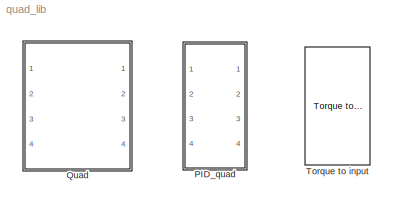
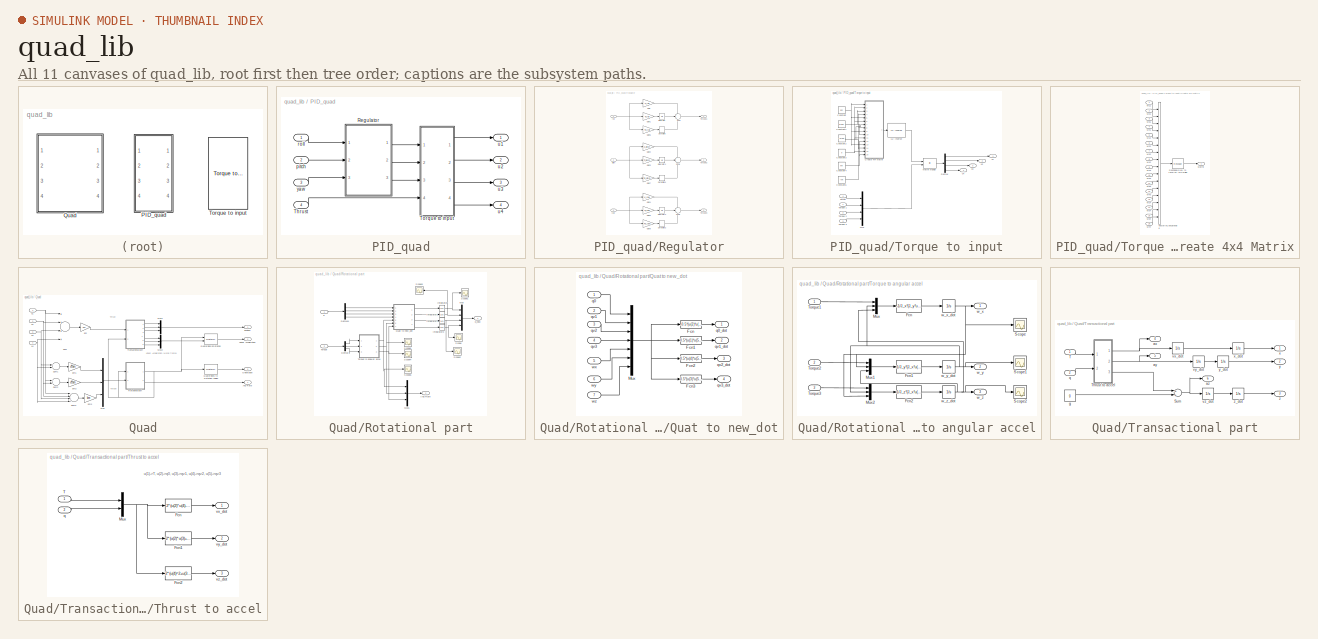
[diagram: thumbnail index - all 11 canvases of the model, root first then tree order]
MODEL quad_lib
KIND library
BLOCK [SubSystem] PID_quad
  FunctionWithSeparateData = off
  MaskHideContents = off
  MinAlgLoopOccurrences = off
  Opaque = off
  Ports = [4, 4]
  PropExecContextOutsideSubsystem = off
  RTWSystemCode = Auto
  RequestExecContextInheritance = off
  SID = 149
BLOCK [Outport] PID_quad/ u1
  IconDisplay = Port number
  SID = 199
BLOCK [Outport] PID_quad/ u2
  IconDisplay = Port number
  Port = 2
  SID = 200
BLOCK [Outport] PID_quad/ u3
  IconDisplay = Port number
  Port = 3
  SID = 201
BLOCK [Outport] PID_quad/ u4
  IconDisplay = Port number
  Port = 4
  SID = 202
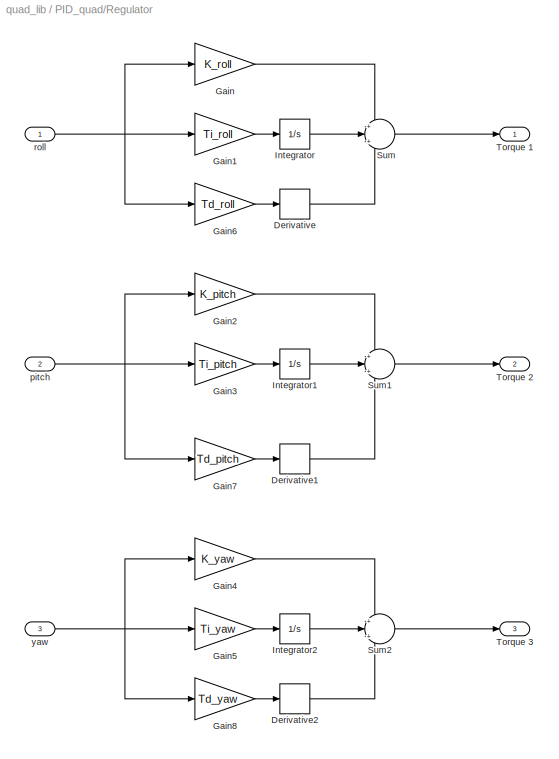
BLOCK [SubSystem] PID_quad/Regulator
  FunctionWithSeparateData = off
  MaskHideContents = off
  MinAlgLoopOccurrences = off
  Opaque = off
  Ports = [3, 3]
  PropExecContextOutsideSubsystem = off
  RTWSystemCode = Auto
  RequestExecContextInheritance = off
  SID = 154
BLOCK [Outport] PID_quad/Regulator/ Torque 1
  IconDisplay = Port number
  SID = 176
BLOCK [Outport] PID_quad/Regulator/ Torque 2
  IconDisplay = Port number
  Port = 2
  SID = 177
BLOCK [Outport] PID_quad/Regulator/ Torque 3
  IconDisplay = Port number
  Port = 3
  SID = 178
BLOCK [Derivative] PID_quad/Regulator/Derivative
  SID = 158
BLOCK [Derivative] PID_quad/Regulator/Derivative1
  SID = 159
BLOCK [Derivative] PID_quad/Regulator/Derivative2
  SID = 160
BLOCK [Gain] PID_quad/Regulator/Gain
  Gain = K_roll
  OutDataTypeStr = Inherit: Inherit via internal rule
  ParamDataTypeStr = Inherit: Inherit via internal rule
  SID = 161
  SaturateOnIntegerOverflow = off
BLOCK [Gain] PID_quad/Regulator/Gain1
  Gain = Ti_roll
  OutDataTypeStr = Inherit: Inherit via internal rule
  ParamDataTypeStr = Inherit: Inherit via internal rule
  SID = 162
  SaturateOnIntegerOverflow = off
BLOCK [Gain] PID_quad/Regulator/Gain2
  Gain = K_pitch
  OutDataTypeStr = Inherit: Inherit via internal rule
  ParamDataTypeStr = Inherit: Inherit via internal rule
  SID = 163
  SaturateOnIntegerOverflow = off
BLOCK [Gain] PID_quad/Regulator/Gain3
  Gain = Ti_pitch
  OutDataTypeStr = Inherit: Inherit via internal rule
  ParamDataTypeStr = Inherit: Inherit via internal rule
  SID = 164
  SaturateOnIntegerOverflow = off
BLOCK [Gain] PID_quad/Regulator/Gain4
  Gain = K_yaw
  OutDataTypeStr = Inherit: Inherit via internal rule
  ParamDataTypeStr = Inherit: Inherit via internal rule
  SID = 165
  SaturateOnIntegerOverflow = off
BLOCK [Gain] PID_quad/Regulator/Gain5
  Gain = Ti_yaw
  OutDataTypeStr = Inherit: Inherit via internal rule
  ParamDataTypeStr = Inherit: Inherit via internal rule
  SID = 166
  SaturateOnIntegerOverflow = off
BLOCK [Gain] PID_quad/Regulator/Gain6
  Gain = Td_roll
  OutDataTypeStr = Inherit: Inherit via internal rule
  ParamDataTypeStr = Inherit: Inherit via internal rule
  SID = 167
  SaturateOnIntegerOverflow = off
BLOCK [Gain] PID_quad/Regulator/Gain7
  Gain = Td_pitch
  OutDataTypeStr = Inherit: Inherit via internal rule
  ParamDataTypeStr = Inherit: Inherit via internal rule
  SID = 168
  SaturateOnIntegerOverflow = off
BLOCK [Gain] PID_quad/Regulator/Gain8
  Gain = Td_yaw
  OutDataTypeStr = Inherit: Inherit via internal rule
  ParamDataTypeStr = Inherit: Inherit via internal rule
  SID = 169
  SaturateOnIntegerOverflow = off
BLOCK [Integrator] PID_quad/Regulator/Integrator
  Ports = [1, 1]
  SID = 170
BLOCK [Integrator] PID_quad/Regulator/Integrator1
  Ports = [1, 1]
  SID = 171
BLOCK [Integrator] PID_quad/Regulator/Integrator2
  Ports = [1, 1]
  SID = 172
BLOCK [Sum] PID_quad/Regulator/Sum
  IconShape = round
  InputSameDT = off
  Inputs = +|+|+
  OutDataTypeStr = Inherit: Inherit via internal rule
  Ports = [3, 1]
  SID = 173
  SaturateOnIntegerOverflow = off
BLOCK [Sum] PID_quad/Regulator/Sum1
  IconShape = round
  InputSameDT = off
  Inputs = +|+|+
  OutDataTypeStr = Inherit: Inherit via internal rule
  Ports = [3, 1]
  SID = 174
  SaturateOnIntegerOverflow = off
BLOCK [Sum] PID_quad/Regulator/Sum2
  IconShape = round
  InputSameDT = off
  Inputs = +|+|+
  OutDataTypeStr = Inherit: Inherit via internal rule
  Ports = [3, 1]
  SID = 175
  SaturateOnIntegerOverflow = off
BLOCK [Inport] PID_quad/Regulator/pitch
  IconDisplay = Port number
  Port = 2
  SID = 156
BLOCK [Inport] PID_quad/Regulator/roll
  IconDisplay = Port number
  SID = 155
BLOCK [Inport] PID_quad/Regulator/yaw
  IconDisplay = Port number
  Port = 3
  SID = 157
BLOCK [Inport] PID_quad/Thrust
  IconDisplay = Port number
  Port = 4
  SID = 153
BLOCK [SubSystem] PID_quad/Torque to input
  FunctionWithSeparateData = off
  MaskHideContents = off
  MinAlgLoopOccurrences = off
  Opaque = off
  Ports = [4, 4]
  PropExecContextOutsideSubsystem = off
  RTWSystemCode = Auto
  RequestExecContextInheritance = off
  SID = 179
BLOCK [Reference] PID_quad/Torque to input/ LU Inverse  REF=dspinverses/ LU Inverse
  FunctionWithSeparateData = off
  Ports = [1, 1]
  RTWMemSecDataConstants = Inherit from model
  RTWMemSecDataInternal = Inherit from model
  RTWMemSecDataParameters = Inherit from model
  RTWMemSecFuncExecute = Inherit from model
  RTWMemSecFuncInitTerm = Inherit from model
  SID = 184
  ShowPortLabels = FromPortIcon
  SourceBlock = dspinverses/ LU Inverse
  SourceType = LU Inverse
  SystemSampleTime = -1
BLOCK [Outport] PID_quad/Torque to input/ u1
  IconDisplay = Port number
  SID = 195
BLOCK [Outport] PID_quad/Torque to input/ u2
  IconDisplay = Port number
  Port = 2
  SID = 196
BLOCK [Outport] PID_quad/Torque to input/ u3
  IconDisplay = Port number
  Port = 3
  SID = 197
BLOCK [Outport] PID_quad/Torque to input/ u4
  IconDisplay = Port number
  Port = 4
  SID = 198
BLOCK [Constant] PID_quad/Torque to input/Constant
  SID = 185
  Value = bm
BLOCK [Constant] PID_quad/Torque to input/Constant1
  SID = 186
  Value = d*bm
BLOCK [Constant] PID_quad/Torque to input/Constant2
  SID = 187
  Value = -d*bm
BLOCK [Constant] PID_quad/Torque to input/Constant3
  SID = 188
  Value = 0
BLOCK [Constant] PID_quad/Torque to input/Constant4
  SID = 189
  Value = km
BLOCK [Constant] PID_quad/Torque to input/Constant5
  SID = 190
  Value = -km
BLOCK [SubSystem] PID_quad/Torque to input/Create 4x4 Matrix
  AncestorBlock = aerolibutil/Create 3x3 Matrix
  FunctionWithSeparateData = off
  MaskHideContents = off
  MinAlgLoopOccurrences = off
  Opaque = off
  Ports = [16, 1]
  PropExecContextOutsideSubsystem = off
  RTWSystemCode = Auto
  RequestExecContextInheritance = off
  SID = 191
BLOCK [Inport] PID_quad/Torque to input/Create 4x4 Matrix/M11
  IconDisplay = Port number
  PortDimensions = 1
  SID = 191:138
BLOCK [Inport] PID_quad/Torque to input/Create 4x4 Matrix/M12
  IconDisplay = Port number
  Port = 5
  PortDimensions = 1
  SID = 191:153
BLOCK [Inport] PID_quad/Torque to input/Create 4x4 Matrix/M13
  IconDisplay = Port number
  Port = 9
  PortDimensions = 1
  SID = 191:152
BLOCK [Inport] PID_quad/Torque to input/Create 4x4 Matrix/M14
  IconDisplay = Port number
  Port = 13
  PortDimensions = 1
  SID = 191:159
BLOCK [Inport] PID_quad/Torque to input/Create 4x4 Matrix/M21
  IconDisplay = Port number
  Port = 2
  PortDimensions = 1
  SID = 191:141
BLOCK [Inport] PID_quad/Torque to input/Create 4x4 Matrix/M22
  IconDisplay = Port number
  Port = 6
  PortDimensions = 1
  SID = 191:154
BLOCK [Inport] PID_quad/Torque to input/Create 4x4 Matrix/M23
  IconDisplay = Port number
  Port = 10
  PortDimensions = 1
  SID = 191:151
BLOCK [Inport] PID_quad/Torque to input/Create 4x4 Matrix/M24
  IconDisplay = Port number
  Port = 14
  PortDimensions = 1
  SID = 191:160
BLOCK [Inport] PID_quad/Torque to input/Create 4x4 Matrix/M31
  IconDisplay = Port number
  Port = 3
  PortDimensions = 1
  SID = 191:144
BLOCK [Inport] PID_quad/Torque to input/Create 4x4 Matrix/M32
  IconDisplay = Port number
  Port = 7
  PortDimensions = 1
  SID = 191:155
BLOCK [Inport] PID_quad/Torque to input/Create 4x4 Matrix/M33
  IconDisplay = Port number
  Port = 11
  PortDimensions = 1
  SID = 191:150
BLOCK [Inport] PID_quad/Torque to input/Create 4x4 Matrix/M34
  IconDisplay = Port number
  Port = 15
  PortDimensions = 1
  SID = 191:161
BLOCK [Inport] PID_quad/Torque to input/Create 4x4 Matrix/M41
  IconDisplay = Port number
  Port = 4
  PortDimensions = 1
  SID = 191:156
BLOCK [Inport] PID_quad/Torque to input/Create 4x4 Matrix/M42
  IconDisplay = Port number
  Port = 8
  PortDimensions = 1
  SID = 191:157
BLOCK [Inport] PID_quad/Torque to input/Create 4x4 Matrix/M43
  IconDisplay = Port number
  Port = 12
  PortDimensions = 1
  SID = 191:158
BLOCK [Inport] PID_quad/Torque to input/Create 4x4 Matrix/M44
  IconDisplay = Port number
  Port = 16
  PortDimensions = 1
  SID = 191:162
BLOCK [Outport] PID_quad/Torque to input/Create 4x4 Matrix/Matrix
  IconDisplay = Port number
  PortDimensions = [4 4]
  SID = 191:149
BLOCK [Reshape] PID_quad/Torque to input/Create 4x4 Matrix/Reshape\n(16) to [4x4]\ncolumn-major
  OutputDimensionality = Customize
  OutputDimensions = [4,4]
  Ports = [1, 1]
  SID = 191:147
BLOCK [Concatenate] PID_quad/Torque to input/Create 4x4 Matrix/Vector\nConcatenate
  NumInputs = 16
  Ports = [16, 1]
  SID = 191:148
BLOCK [Demux] PID_quad/Torque to input/Demux
  DisplayOption = bar
  Ports = [1, 4]
  SID = 192
BLOCK [Product] PID_quad/Torque to input/Matrix Multiply
  InputSameDT = off
  Multiplication = Matrix(*)
  OutDataTypeStr = Inherit: Inherit via internal rule
  Ports = [2, 1]
  RndMeth = Floor
  SID = 193
  SaturateOnIntegerOverflow = off
BLOCK [Mux] PID_quad/Torque to input/Mux
  DisplayOption = bar
  Ports = [4, 1]
  SID = 194
BLOCK [Inport] PID_quad/Torque to input/Thrust
  IconDisplay = Port number
  Port = 4
  SID = 183
BLOCK [Inport] PID_quad/Torque to input/Torque 1
  IconDisplay = Port number
  SID = 180
BLOCK [Inport] PID_quad/Torque to input/Torque 2
  IconDisplay = Port number
  Port = 2
  SID = 181
BLOCK [Inport] PID_quad/Torque to input/Torque 3
  IconDisplay = Port number
  Port = 3
  SID = 182
BLOCK [Inport] PID_quad/pitch
  IconDisplay = Port number
  Port = 2
  SID = 151
BLOCK [Inport] PID_quad/roll
  IconDisplay = Port number
  SID = 150
BLOCK [Inport] PID_quad/yaw
  IconDisplay = Port number
  Port = 3
  SID = 152
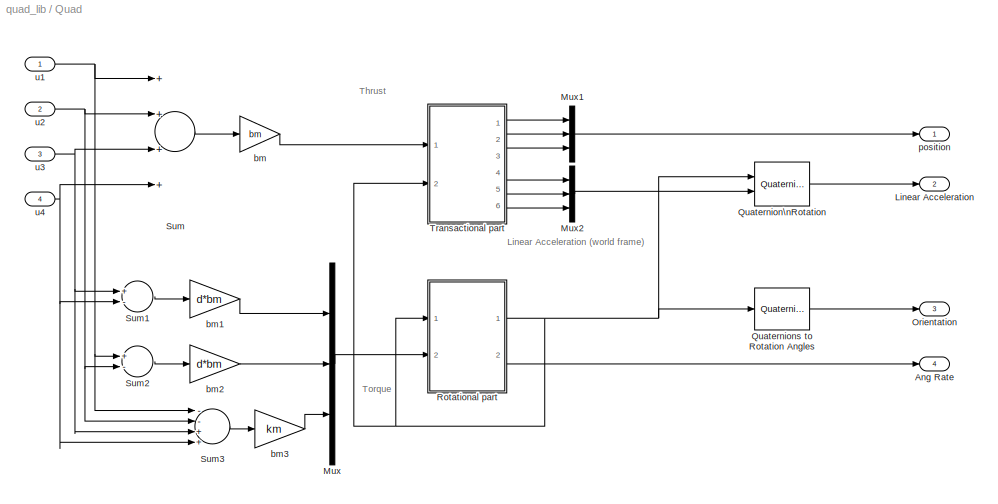
BLOCK [SubSystem] Quad
  FunctionWithSeparateData = off
  MaskHideContents = off
  MinAlgLoopOccurrences = off
  Opaque = off
  Ports = [4, 4]
  PropExecContextOutsideSubsystem = off
  RTWSystemCode = Auto
  RequestExecContextInheritance = off
  SID = 1
BLOCK [Outport] Quad/Ang Rate
  IconDisplay = Port number
  Port = 4
  SID = 226
BLOCK [Outport] Quad/Linear Acceleration
  IconDisplay = Port number
  Port = 2
  SID = 231
BLOCK [Mux] Quad/Mux
  DisplayOption = bar
  Inputs = 3
  Ports = [3, 1]
  SID = 7
BLOCK [Mux] Quad/Mux1
  DisplayOption = bar
  Inputs = 3
  Ports = [3, 1]
  SID = 211
BLOCK [Mux] Quad/Mux2
  DisplayOption = bar
  Inputs = 3
  Ports = [3, 1]
  SID = 214
BLOCK [Outport] Quad/Orientation
  IconDisplay = Port number
  Port = 3
  SID = 213
BLOCK [Reference] Quad/Quaternion\nRotation  REF=aerolibutil/Quaternion\nRotation
  Ports = [2, 1]
  SID = 230
  SourceBlock = aerolibutil/Quaternion\nRotation
  SourceType = Quaternion Rotation
BLOCK [Reference] Quad/Quaternions to Rotation Angles  REF=aerolibtransform2/Quaternions to Rotation Angles
  AttributesFormatString = Rotation Order: %<rotationOrder>
  Ports = [1, 1]
  SID = 8
  SourceBlock = aerolibtransform2/Quaternions to Rotation Angles
  SourceType = Quat2Ang
  rotationOrder = XYZ
BLOCK [SubSystem] Quad/Rotational part
  FunctionWithSeparateData = off
  MaskHideContents = off
  MinAlgLoopOccurrences = off
  Opaque = off
  Ports = [2, 2]
  PropExecContextOutsideSubsystem = off
  RTWSystemCode = Auto
  RequestExecContextInheritance = off
  SID = 9
BLOCK [Outport] Quad/Rotational part/Ang Rate
  IconDisplay = Port number
  Port = 2
  SID = 222
BLOCK [Demux] Quad/Rotational part/Demux
  DisplayOption = bar
  Outputs = 3
  Ports = [1, 3]
  SID = 12
BLOCK [Demux] Quad/Rotational part/Demux1
  DisplayOption = bar
  Ports = [1, 4]
  SID = 13
BLOCK [Integrator] Quad/Rotational part/Integrator
  InitialCondition = qo_i
  Ports = [1, 1]
  SID = 14
BLOCK [Integrator] Quad/Rotational part/Integrator1
  InitialCondition = qv1_i
  Ports = [1, 1]
  SID = 15
BLOCK [Integrator] Quad/Rotational part/Integrator2
  InitialCondition = qv2_i
  Ports = [1, 1]
  SID = 16
BLOCK [Integrator] Quad/Rotational part/Integrator3
  InitialCondition = qv3_i
  Ports = [1, 1]
  SID = 17
BLOCK [Mux] Quad/Rotational part/Mux
  DisplayOption = bar
  Ports = [4, 1]
  SID = 18
BLOCK [Mux] Quad/Rotational part/Mux1
  DisplayOption = bar
  Inputs = 3
  Ports = [3, 1]
  SID = 221
BLOCK [SubSystem] Quad/Rotational part/Quat to new_dot
  FunctionWithSeparateData = off
  MaskHideContents = off
  MinAlgLoopOccurrences = off
  Opaque = off
  Ports = [7, 4]
  PropExecContextOutsideSubsystem = off
  RTWSystemCode = Auto
  RequestExecContextInheritance = off
  SID = 19
BLOCK [Fcn] Quad/Rotational part/Quat to new_dot/Fcn
  Expr = -0.5*(u(2)*u(5)+u(3)*u(6)+u(4)*u(7))
  SID = 27
BLOCK [Fcn] Quad/Rotational part/Quat to new_dot/Fcn1
  Expr = 0.5*(u(1)*u(5)-u(4)*u(6)-u(3)*u(7))
  SID = 28
BLOCK [Fcn] Quad/Rotational part/Quat to new_dot/Fcn2
  Expr = 0.5*(u(4)*u(5)+u(1)*u(6)-u(2)*u(7))
  SID = 29
BLOCK [Fcn] Quad/Rotational part/Quat to new_dot/Fcn3
  Expr = 0.5*(u(3)*u(5)+u(2)*u(6)+u(1)*u(7))
  SID = 30
BLOCK [Mux] Quad/Rotational part/Quat to new_dot/Mux
  DisplayOption = bar
  Inputs = 7
  Ports = [7, 1]
  SID = 31
BLOCK [Inport] Quad/Rotational part/Quat to new_dot/q0
  IconDisplay = Port number
  SID = 20
BLOCK [Outport] Quad/Rotational part/Quat to new_dot/q0_dot
  IconDisplay = Port number
  SID = 32
BLOCK [Inport] Quad/Rotational part/Quat to new_dot/qv1
  IconDisplay = Port number
  Port = 2
  SID = 21
BLOCK [Outport] Quad/Rotational part/Quat to new_dot/qv1_dot
  IconDisplay = Port number
  Port = 2
  SID = 33
BLOCK [Inport] Quad/Rotational part/Quat to new_dot/qv2
  IconDisplay = Port number
  Port = 3
  SID = 22
BLOCK [Outport] Quad/Rotational part/Quat to new_dot/qv2_dot
  IconDisplay = Port number
  Port = 3
  SID = 34
BLOCK [Inport] Quad/Rotational part/Quat to new_dot/qv3
  IconDisplay = Port number
  Port = 4
  SID = 23
BLOCK [Outport] Quad/Rotational part/Quat to new_dot/qv3_dot
  IconDisplay = Port number
  Port = 4
  SID = 35
BLOCK [Inport] Quad/Rotational part/Quat to new_dot/wx
  IconDisplay = Port number
  Port = 5
  SID = 24
BLOCK [Inport] Quad/Rotational part/Quat to new_dot/wy
  IconDisplay = Port number
  Port = 6
  SID = 25
BLOCK [Inport] Quad/Rotational part/Quat to new_dot/wz
  IconDisplay = Port number
  Port = 7
  SID = 26
BLOCK [Scope] Quad/Rotational part/Scope
  DataFormat = StructureWithTime
  Floating = off
  LimitDataPoints = off
  NumInputPorts = 1
  Ports = [1]
  SID = 36
  SampleTime = 0
  SaveName = ScopeData9
  ShowLegends = off
BLOCK [Scope] Quad/Rotational part/Scope1
  DataFormat = StructureWithTime
  Floating = off
  LimitDataPoints = off
  NumInputPorts = 1
  Ports = [1]
  SID = 37
  SampleTime = 0
  SaveName = ScopeData10
  ShowLegends = off
BLOCK [Scope] Quad/Rotational part/Scope2
  DataFormat = StructureWithTime
  Floating = off
  LimitDataPoints = off
  NumInputPorts = 1
  Ports = [1]
  SID = 38
  SampleTime = 0
  SaveName = ScopeData11
  ShowLegends = off
BLOCK [Scope] Quad/Rotational part/Scope3
  DataFormat = StructureWithTime
  Floating = off
  LimitDataPoints = off
  NumInputPorts = 1
  Ports = [1]
  SID = 39
  SampleTime = 0
  SaveName = ScopeData12
  ShowLegends = off
BLOCK [Scope] Quad/Rotational part/Scope4
  DataFormat = StructureWithTime
  Floating = off
  LimitDataPoints = off
  NumInputPorts = 1
  Ports = [1]
  SID = 40
  SampleTime = 0
  SaveName = ScopeData13
  ShowLegends = off
BLOCK [Scope] Quad/Rotational part/Scope5
  DataFormat = StructureWithTime
  Floating = off
  LimitDataPoints = off
  NumInputPorts = 1
  Ports = [1]
  SID = 41
  SampleTime = 0
  SaveName = ScopeData14
  ShowLegends = off
BLOCK [Scope] Quad/Rotational part/Scope6
  DataFormat = StructureWithTime
  Floating = off
  LimitDataPoints = off
  NumInputPorts = 1
  Ports = [1]
  SID = 42
  SampleTime = 0
  SaveName = ScopeData15
  ShowLegends = off
BLOCK [Inport] Quad/Rotational part/Torque
  IconDisplay = Port number
  Port = 2
  SID = 11
BLOCK [SubSystem] Quad/Rotational part/Torque to angular accel
  FunctionWithSeparateData = off
  MaskHideContents = off
  MinAlgLoopOccurrences = off
  Opaque = off
  Ports = [3, 3]
  PropExecContextOutsideSubsystem = off
  RTWSystemCode = Auto
  RequestExecContextInheritance = off
  SID = 43
BLOCK [Fcn] Quad/Rotational part/Torque to angular accel/Fcn
  Expr = -1/J_x*(J_y*u(3)*u(2)+J_z*u(3)*u(2)-u(1))
  SID = 47
BLOCK [Fcn] Quad/Rotational part/Torque to angular accel/Fcn1
  Expr = 1/J_y*(J_x*u(2)*u(3)-J_z*u(2)*u(3)+u(1))
  SID = 48
BLOCK [Fcn] Quad/Rotational part/Torque to angular accel/Fcn2
  Expr = 1/J_z*(J_x*u(2)*u(3)+J_y*u(2)*u(3)+u(1))
  SID = 49
BLOCK [Mux] Quad/Rotational part/Torque to angular accel/Mux
  DisplayOption = bar
  Inputs = 3
  Ports = [3, 1]
  SID = 50
BLOCK [Mux] Quad/Rotational part/Torque to angular accel/Mux1
  DisplayOption = bar
  Inputs = 3
  Ports = [3, 1]
  SID = 51
BLOCK [Mux] Quad/Rotational part/Torque to angular accel/Mux2
  DisplayOption = bar
  Inputs = 3
  Ports = [3, 1]
  SID = 52
BLOCK [Scope] Quad/Rotational part/Torque to angular accel/Scope
  DataFormat = StructureWithTime
  Floating = off
  NumInputPorts = 1
  Ports = [1]
  SID = 53
  SampleTime = 0
  SaveName = ScopeData6
  ShowLegends = off
BLOCK [Scope] Quad/Rotational part/Torque to angular accel/Scope1
  DataFormat = StructureWithTime
  Floating = off
  NumInputPorts = 1
  Ports = [1]
  SID = 54
  SampleTime = 0
  SaveName = ScopeData7
  ShowLegends = off
BLOCK [Scope] Quad/Rotational part/Torque to angular accel/Scope2
  DataFormat = StructureWithTime
  Floating = off
  NumInputPorts = 1
  Ports = [1]
  SID = 55
  SampleTime = 0
  SaveName = ScopeData8
  ShowLegends = off
BLOCK [Inport] Quad/Rotational part/Torque to angular accel/Torque1
  IconDisplay = Port number
  SID = 44
BLOCK [Inport] Quad/Rotational part/Torque to angular accel/Torque2
  IconDisplay = Port number
  Port = 2
  SID = 45
BLOCK [Inport] Quad/Rotational part/Torque to angular accel/Torque3
  IconDisplay = Port number
  Port = 3
  SID = 46
BLOCK [Outport] Quad/Rotational part/Torque to angular accel/w_x
  IconDisplay = Port number
  SID = 59
BLOCK [Integrator] Quad/Rotational part/Torque to angular accel/w_x_dot
  Ports = [1, 1]
  SID = 56
BLOCK [Outport] Quad/Rotational part/Torque to angular accel/w_y
  IconDisplay = Port number
  Port = 2
  SID = 60
BLOCK [Integrator] Quad/Rotational part/Torque to angular accel/w_y_dot
  Ports = [1, 1]
  SID = 57
BLOCK [Outport] Quad/Rotational part/Torque to angular accel/w_z
  IconDisplay = Port number
  Port = 3
  SID = 61
BLOCK [Integrator] Quad/Rotational part/Torque to angular accel/w_z_dot
  Ports = [1, 1]
  SID = 58
BLOCK [Inport] Quad/Rotational part/q
  IconDisplay = Port number
  SID = 10
BLOCK [Outport] Quad/Rotational part/q_new
  IconDisplay = Port number
  SID = 62
BLOCK [Sum] Quad/Sum
  InputSameDT = off
  Inputs = ++++
  OutDataTypeStr = Inherit: Inherit via internal rule
  Ports = [4, 1]
  SID = 63
  SaturateOnIntegerOverflow = off
BLOCK [Sum] Quad/Sum1
  InputSameDT = off
  Inputs = +-
  OutDataTypeStr = Inherit: Inherit via internal rule
  Ports = [2, 1]
  SID = 64
  SaturateOnIntegerOverflow = off
BLOCK [Sum] Quad/Sum2
  InputSameDT = off
  Inputs = +-
  OutDataTypeStr = Inherit: Inherit via internal rule
  Ports = [2, 1]
  SID = 65
  SaturateOnIntegerOverflow = off
BLOCK [Sum] Quad/Sum3
  InputSameDT = off
  Inputs = --++
  OutDataTypeStr = Inherit: Inherit via internal rule
  Ports = [4, 1]
  SID = 66
  SaturateOnIntegerOverflow = off
BLOCK [SubSystem] Quad/Transactional part
  FunctionWithSeparateData = off
  MaskHideContents = off
  MinAlgLoopOccurrences = off
  Opaque = off
  Ports = [2, 6]
  PropExecContextOutsideSubsystem = off
  RTWSystemCode = Auto
  RequestExecContextInheritance = off
  SID = 67
BLOCK [Sum] Quad/Transactional part/Sum
  InputSameDT = off
  OutDataTypeStr = Inherit: Inherit via internal rule
  Ports = [2, 1]
  SID = 70
  SaturateOnIntegerOverflow = off
BLOCK [Inport] Quad/Transactional part/T
  IconDisplay = Port number
  SID = 68
BLOCK [SubSystem] Quad/Transactional part/Thrust to accel
  FunctionWithSeparateData = off
  MaskHideContents = off
  MinAlgLoopOccurrences = off
  Opaque = off
  Ports = [2, 3]
  PropExecContextOutsideSubsystem = off
  RTWSystemCode = Auto
  RequestExecContextInheritance = off
  SID = 71
BLOCK [Fcn] Quad/Transactional part/Thrust to accel/Fcn
  Expr = 2*(u(2)*u(4)-u(5)*u(3))*u(1)/m
  SID = 74
BLOCK [Fcn] Quad/Transactional part/Thrust to accel/Fcn1
  Expr = 2*(u(2)*u(3)+u(5)*u(4))*u(1)/m
  SID = 75
BLOCK [Fcn] Quad/Transactional part/Thrust to accel/Fcn2
  Expr = 2*(u(4)^2+u(3)^2-0.5)*u(1)/m
  SID = 76
BLOCK [Mux] Quad/Transactional part/Thrust to accel/Mux
  DisplayOption = bar
  Inputs = 2
  Ports = [2, 1]
  SID = 77
BLOCK [Inport] Quad/Transactional part/Thrust to accel/T
  IconDisplay = Port number
  SID = 72
BLOCK [Inport] Quad/Transactional part/Thrust to accel/q
  IconDisplay = Port number
  Port = 2
  SID = 73
BLOCK [Outport] Quad/Transactional part/Thrust to accel/vx_dot
  IconDisplay = Port number
  SID = 78
BLOCK [Outport] Quad/Transactional part/Thrust to accel/vy_dot
  IconDisplay = Port number
  Port = 2
  SID = 79
BLOCK [Outport] Quad/Transactional part/Thrust to accel/vz_dot
  IconDisplay = Port number
  Port = 3
  SID = 80
BLOCK [Outport] Quad/Transactional part/ax
  IconDisplay = Port number
  Port = 4
  SID = 207
BLOCK [Outport] Quad/Transactional part/ay
  IconDisplay = Port number
  Port = 5
  SID = 208
BLOCK [Outport] Quad/Transactional part/az
  IconDisplay = Port number
  Port = 6
  SID = 209
BLOCK [Constant] Quad/Transactional part/g
  SID = 81
  Value = g
BLOCK [Inport] Quad/Transactional part/q
  IconDisplay = Port number
  Port = 2
  SID = 69
BLOCK [Integrator] Quad/Transactional part/vx_dot
  Ports = [1, 1]
  SID = 82
BLOCK [Integrator] Quad/Transactional part/vy_dot
  Ports = [1, 1]
  SID = 83
BLOCK [Integrator] Quad/Transactional part/vz_dot
  Ports = [1, 1]
  SID = 84
BLOCK [Outport] Quad/Transactional part/x
  IconDisplay = Port number
  SID = 88
BLOCK [Integrator] Quad/Transactional part/x_dot
  Ports = [1, 1]
  SID = 85
BLOCK [Outport] Quad/Transactional part/y
  IconDisplay = Port number
  Port = 2
  SID = 89
BLOCK [Integrator] Quad/Transactional part/y_dot
  Ports = [1, 1]
  SID = 86
BLOCK [Outport] Quad/Transactional part/z
  IconDisplay = Port number
  Port = 3
  SID = 90
BLOCK [Integrator] Quad/Transactional part/z_dot
  Ports = [1, 1]
  SID = 87
BLOCK [Gain] Quad/bm
  Gain = bm
  OutDataTypeStr = Inherit: Inherit via internal rule
  ParamDataTypeStr = Inherit: Inherit via internal rule
  SID = 91
  SaturateOnIntegerOverflow = off
BLOCK [Gain] Quad/bm1
  Gain = d*bm
  OutDataTypeStr = Inherit: Inherit via internal rule
  ParamDataTypeStr = Inherit: Inherit via internal rule
  SID = 92
  SaturateOnIntegerOverflow = off
BLOCK [Gain] Quad/bm2
  Gain = d*bm
  OutDataTypeStr = Inherit: Inherit via internal rule
  ParamDataTypeStr = Inherit: Inherit via internal rule
  SID = 93
  SaturateOnIntegerOverflow = off
BLOCK [Gain] Quad/bm3
  Gain = km
  OutDataTypeStr = Inherit: Inherit via internal rule
  ParamDataTypeStr = Inherit: Inherit via internal rule
  SID = 94
  SaturateOnIntegerOverflow = off
BLOCK [Outport] Quad/position
  IconDisplay = Port number
  SID = 212
BLOCK [Inport] Quad/u1
  IconDisplay = Port number
  SID = 2
BLOCK [Inport] Quad/u2
  IconDisplay = Port number
  Port = 2
  SID = 3
BLOCK [Inport] Quad/u3
  IconDisplay = Port number
  Port = 3
  SID = 4
BLOCK [Inport] Quad/u4
  IconDisplay = Port number
  Port = 4
  SID = 5
BLOCK [Reference] Torque to input  REF=quad_lib/PID_quad/Torque to input  (lib defined in mdl_3e84e055d8f3)
  Ports = [4, 4]
  SID = 232
  SourceBlock = quad_lib/PID_quad/Torque to input
  SourceType = SubSystem
ANNOTATION Quad: Linear Acceleration (world frame)
ANNOTATION Quad: Thrust
ANNOTATION Quad: Torque
ANNOTATION Quad/Transactional part/Thrust to accel: u(1)->T, u(2)->q0, u(3)->qv1, u(4)->qv2, u(5)->qv3
LINE PID_quad/Regulator/Derivative1:1 -> PID_quad/Regulator/Sum1:3
LINE PID_quad/Regulator/Derivative2:1 -> PID_quad/Regulator/Sum2:3
LINE PID_quad/Regulator/Derivative:1 -> PID_quad/Regulator/Sum:3
LINE PID_quad/Regulator/Gain1:1 -> PID_quad/Regulator/Integrator:1
LINE PID_quad/Regulator/Gain2:1 -> PID_quad/Regulator/Sum1:1
LINE PID_quad/Regulator/Gain3:1 -> PID_quad/Regulator/Integrator1:1
LINE PID_quad/Regulator/Gain4:1 -> PID_quad/Regulator/Sum2:1
LINE PID_quad/Regulator/Gain5:1 -> PID_quad/Regulator/Integrator2:1
LINE PID_quad/Regulator/Gain6:1 -> PID_quad/Regulator/Derivative:1
LINE PID_quad/Regulator/Gain7:1 -> PID_quad/Regulator/Derivative1:1
LINE PID_quad/Regulator/Gain8:1 -> PID_quad/Regulator/Derivative2:1
LINE PID_quad/Regulator/Gain:1 -> PID_quad/Regulator/Sum:1
LINE PID_quad/Regulator/Integrator1:1 -> PID_quad/Regulator/Sum1:2
LINE PID_quad/Regulator/Integrator2:1 -> PID_quad/Regulator/Sum2:2
LINE PID_quad/Regulator/Integrator:1 -> PID_quad/Regulator/Sum:2
LINE PID_quad/Regulator/Sum1:1 -> PID_quad/Regulator/ Torque 2:1
LINE PID_quad/Regulator/Sum2:1 -> PID_quad/Regulator/ Torque 3:1
LINE PID_quad/Regulator/Sum:1 -> PID_quad/Regulator/ Torque 1:1
NET PID_quad/Regulator/pitch:1 -> PID_quad/Regulator/Gain2:1, PID_quad/Regulator/Gain3:1, PID_quad/Regulator/Gain7:1
NET PID_quad/Regulator/roll:1 -> PID_quad/Regulator/Gain1:1, PID_quad/Regulator/Gain6:1, PID_quad/Regulator/Gain:1
NET PID_quad/Regulator/yaw:1 -> PID_quad/Regulator/Gain4:1, PID_quad/Regulator/Gain5:1, PID_quad/Regulator/Gain8:1
LINE PID_quad/Regulator:1 -> PID_quad/Torque to input:1
LINE PID_quad/Regulator:2 -> PID_quad/Torque to input:2
LINE PID_quad/Regulator:3 -> PID_quad/Torque to input:3
LINE PID_quad/Thrust:1 -> PID_quad/Torque to input:4
LINE PID_quad/Torque to input/ LU Inverse:1 -> PID_quad/Torque to input/Matrix Multiply:1
NET PID_quad/Torque to input/Constant1:1 -> PID_quad/Torque to input/Create 4x4 Matrix:10, PID_quad/Torque to input/Create 4x4 Matrix:3
NET PID_quad/Torque to input/Constant2:1 -> PID_quad/Torque to input/Create 4x4 Matrix:14, PID_quad/Torque to input/Create 4x4 Matrix:7
NET PID_quad/Torque to input/Constant3:1 -> PID_quad/Torque to input/Create 4x4 Matrix:11, PID_quad/Torque to input/Create 4x4 Matrix:15, PID_quad/Torque to input/Create 4x4 Matrix:2, PID_quad/Torque to input/Create 4x4 Matrix:6
NET PID_quad/Torque to input/Constant4:1 -> PID_quad/Torque to input/Create 4x4 Matrix:12, PID_quad/Torque to input/Create 4x4 Matrix:16
NET PID_quad/Torque to input/Constant5:1 -> PID_quad/Torque to input/Create 4x4 Matrix:4, PID_quad/Torque to input/Create 4x4 Matrix:8
NET PID_quad/Torque to input/Constant:1 -> PID_quad/Torque to input/Create 4x4 Matrix:1, PID_quad/Torque to input/Create 4x4 Matrix:13, PID_quad/Torque to input/Create 4x4 Matrix:5, PID_quad/Torque to input/Create 4x4 Matrix:9
LINE PID_quad/Torque to input/Create 4x4 Matrix/M11:1 -> PID_quad/Torque to input/Create 4x4 Matrix/Vector\nConcatenate:1
LINE PID_quad/Torque to input/Create 4x4 Matrix/M12:1 -> PID_quad/Torque to input/Create 4x4 Matrix/Vector\nConcatenate:5
LINE PID_quad/Torque to input/Create 4x4 Matrix/M13:1 -> PID_quad/Torque to input/Create 4x4 Matrix/Vector\nConcatenate:9
LINE PID_quad/Torque to input/Create 4x4 Matrix/M14:1 -> PID_quad/Torque to input/Create 4x4 Matrix/Vector\nConcatenate:13
LINE PID_quad/Torque to input/Create 4x4 Matrix/M21:1 -> PID_quad/Torque to input/Create 4x4 Matrix/Vector\nConcatenate:2
LINE PID_quad/Torque to input/Create 4x4 Matrix/M22:1 -> PID_quad/Torque to input/Create 4x4 Matrix/Vector\nConcatenate:6
LINE PID_quad/Torque to input/Create 4x4 Matrix/M23:1 -> PID_quad/Torque to input/Create 4x4 Matrix/Vector\nConcatenate:10
LINE PID_quad/Torque to input/Create 4x4 Matrix/M24:1 -> PID_quad/Torque to input/Create 4x4 Matrix/Vector\nConcatenate:14
LINE PID_quad/Torque to input/Create 4x4 Matrix/M31:1 -> PID_quad/Torque to input/Create 4x4 Matrix/Vector\nConcatenate:3
LINE PID_quad/Torque to input/Create 4x4 Matrix/M32:1 -> PID_quad/Torque to input/Create 4x4 Matrix/Vector\nConcatenate:7
LINE PID_quad/Torque to input/Create 4x4 Matrix/M33:1 -> PID_quad/Torque to input/Create 4x4 Matrix/Vector\nConcatenate:11
LINE PID_quad/Torque to input/Create 4x4 Matrix/M34:1 -> PID_quad/Torque to input/Create 4x4 Matrix/Vector\nConcatenate:15
LINE PID_quad/Torque to input/Create 4x4 Matrix/M41:1 -> PID_quad/Torque to input/Create 4x4 Matrix/Vector\nConcatenate:4
LINE PID_quad/Torque to input/Create 4x4 Matrix/M42:1 -> PID_quad/Torque to input/Create 4x4 Matrix/Vector\nConcatenate:8
LINE PID_quad/Torque to input/Create 4x4 Matrix/M43:1 -> PID_quad/Torque to input/Create 4x4 Matrix/Vector\nConcatenate:12
LINE PID_quad/Torque to input/Create 4x4 Matrix/M44:1 -> PID_quad/Torque to input/Create 4x4 Matrix/Vector\nConcatenate:16
LINE PID_quad/Torque to input/Create 4x4 Matrix/Reshape\n(16) to [4x4]\ncolumn-major:1 -> PID_quad/Torque to input/Create 4x4 Matrix/Matrix:1
LINE PID_quad/Torque to input/Create 4x4 Matrix/Vector\nConcatenate:1 -> PID_quad/Torque to input/Create 4x4 Matrix/Reshape\n(16) to [4x4]\ncolumn-major:1
LINE PID_quad/Torque to input/Create 4x4 Matrix:1 -> PID_quad/Torque to input/ LU Inverse:1
LINE PID_quad/Torque to input/Demux:1 -> PID_quad/Torque to input/ u1:1
LINE PID_quad/Torque to input/Demux:2 -> PID_quad/Torque to input/ u2:1
LINE PID_quad/Torque to input/Demux:3 -> PID_quad/Torque to input/ u3:1
LINE PID_quad/Torque to input/Demux:4 -> PID_quad/Torque to input/ u4:1
LINE PID_quad/Torque to input/Matrix Multiply:1 -> PID_quad/Torque to input/Demux:1
LINE PID_quad/Torque to input/Mux:1 -> PID_quad/Torque to input/Matrix Multiply:2
LINE PID_quad/Torque to input/Thrust:1 -> PID_quad/Torque to input/Mux:1
LINE PID_quad/Torque to input/Torque 1:1 -> PID_quad/Torque to input/Mux:2
LINE PID_quad/Torque to input/Torque 2:1 -> PID_quad/Torque to input/Mux:3
LINE PID_quad/Torque to input/Torque 3:1 -> PID_quad/Torque to input/Mux:4
LINE PID_quad/Torque to input:1 -> PID_quad/ u1:1
LINE PID_quad/Torque to input:2 -> PID_quad/ u2:1
LINE PID_quad/Torque to input:3 -> PID_quad/ u3:1
LINE PID_quad/Torque to input:4 -> PID_quad/ u4:1
LINE PID_quad/pitch:1 -> PID_quad/Regulator:2
LINE PID_quad/roll:1 -> PID_quad/Regulator:1
LINE PID_quad/yaw:1 -> PID_quad/Regulator:3
LINE Quad/Mux1:1 -> Quad/position:1
LINE Quad/Mux2:1 -> Quad/Quaternion\nRotation:2
LINE Quad/Mux:1 -> Quad/Rotational part:2
LINE Quad/Quaternion\nRotation:1 -> Quad/Linear Acceleration:1
LINE Quad/Quaternions to Rotation Angles:1 -> Quad/Orientation:1
LINE Quad/Rotational part/Demux1:1 -> Quad/Rotational part/Quat to new_dot:1
LINE Quad/Rotational part/Demux1:2 -> Quad/Rotational part/Quat to new_dot:2
LINE Quad/Rotational part/Demux1:3 -> Quad/Rotational part/Quat to new_dot:3
LINE Quad/Rotational part/Demux1:4 -> Quad/Rotational part/Quat to new_dot:4
LINE Quad/Rotational part/Demux:1 -> Quad/Rotational part/Torque to angular accel:1
LINE Quad/Rotational part/Demux:2 -> Quad/Rotational part/Torque to angular accel:2
LINE Quad/Rotational part/Demux:3 -> Quad/Rotational part/Torque to angular accel:3
NET Quad/Rotational part/Integrator1:1 -> Quad/Rotational part/Mux:2, Quad/Rotational part/Scope3:1
NET Quad/Rotational part/Integrator2:1 -> Quad/Rotational part/Mux:3, Quad/Rotational part/Scope2:1
NET Quad/Rotational part/Integrator3:1 -> Quad/Rotational part/Mux:4, Quad/Rotational part/Scope:1
NET Quad/Rotational part/Integrator:1 -> Quad/Rotational part/Mux:1, Quad/Rotational part/Scope1:1
LINE Quad/Rotational part/Mux1:1 -> Quad/Rotational part/Ang Rate:1
LINE Quad/Rotational part/Mux:1 -> Quad/Rotational part/q_new:1
LINE Quad/Rotational part/Quat to new_dot/Fcn1:1 -> Quad/Rotational part/Quat to new_dot/qv1_dot:1
LINE Quad/Rotational part/Quat to new_dot/Fcn2:1 -> Quad/Rotational part/Quat to new_dot/qv2_dot:1
LINE Quad/Rotational part/Quat to new_dot/Fcn3:1 -> Quad/Rotational part/Quat to new_dot/qv3_dot:1
LINE Quad/Rotational part/Quat to new_dot/Fcn:1 -> Quad/Rotational part/Quat to new_dot/q0_dot:1
NET Quad/Rotational part/Quat to new_dot/Mux:1 -> Quad/Rotational part/Quat to new_dot/Fcn1:1, Quad/Rotational part/Quat to new_dot/Fcn2:1, Quad/Rotational part/Quat to new_dot/Fcn3:1, Quad/Rotational part/Quat to new_dot/Fcn:1
LINE Quad/Rotational part/Quat to new_dot/q0:1 -> Quad/Rotational part/Quat to new_dot/Mux:1
LINE Quad/Rotational part/Quat to new_dot/qv1:1 -> Quad/Rotational part/Quat to new_dot/Mux:2
LINE Quad/Rotational part/Quat to new_dot/qv2:1 -> Quad/Rotational part/Quat to new_dot/Mux:3
LINE Quad/Rotational part/Quat to new_dot/qv3:1 -> Quad/Rotational part/Quat to new_dot/Mux:4
LINE Quad/Rotational part/Quat to new_dot/wx:1 -> Quad/Rotational part/Quat to new_dot/Mux:5
LINE Quad/Rotational part/Quat to new_dot/wy:1 -> Quad/Rotational part/Quat to new_dot/Mux:6
LINE Quad/Rotational part/Quat to new_dot/wz:1 -> Quad/Rotational part/Quat to new_dot/Mux:7
LINE Quad/Rotational part/Quat to new_dot:1 -> Quad/Rotational part/Integrator:1
LINE Quad/Rotational part/Quat to new_dot:2 -> Quad/Rotational part/Integrator1:1
LINE Quad/Rotational part/Quat to new_dot:3 -> Quad/Rotational part/Integrator2:1
LINE Quad/Rotational part/Quat to new_dot:4 -> Quad/Rotational part/Integrator3:1
LINE Quad/Rotational part/Torque to angular accel/Fcn1:1 -> Quad/Rotational part/Torque to angular accel/w_y_dot:1
LINE Quad/Rotational part/Torque to angular accel/Fcn2:1 -> Quad/Rotational part/Torque to angular accel/w_z_dot:1
LINE Quad/Rotational part/Torque to angular accel/Fcn:1 -> Quad/Rotational part/Torque to angular accel/w_x_dot:1
LINE Quad/Rotational part/Torque to angular accel/Mux1:1 -> Quad/Rotational part/Torque to angular accel/Fcn1:1
LINE Quad/Rotational part/Torque to angular accel/Mux2:1 -> Quad/Rotational part/Torque to angular accel/Fcn2:1
LINE Quad/Rotational part/Torque to angular accel/Mux:1 -> Quad/Rotational part/Torque to angular accel/Fcn:1
LINE Quad/Rotational part/Torque to angular accel/Torque1:1 -> Quad/Rotational part/Torque to angular accel/Mux:1
LINE Quad/Rotational part/Torque to angular accel/Torque2:1 -> Quad/Rotational part/Torque to angular accel/Mux1:1
LINE Quad/Rotational part/Torque to angular accel/Torque3:1 -> Quad/Rotational part/Torque to angular accel/Mux2:1
NET Quad/Rotational part/Torque to angular accel/w_x_dot:1 -> Quad/Rotational part/Torque to angular accel/Mux1:2, Quad/Rotational part/Torque to angular accel/Mux2:3, Quad/Rotational part/Torque to angular accel/Scope:1, Quad/Rotational part/Torque to angular accel/w_x:1
NET Quad/Rotational part/Torque to angular accel/w_y_dot:1 -> Quad/Rotational part/Torque to angular accel/Mux2:2, Quad/Rotational part/Torque to angular accel/Mux:2, Quad/Rotational part/Torque to angular accel/Scope1:1, Quad/Rotational part/Torque to angular accel/w_y:1
NET Quad/Rotational part/Torque to angular accel/w_z_dot:1 -> Quad/Rotational part/Torque to angular accel/Mux1:3, Quad/Rotational part/Torque to angular accel/Mux:3, Quad/Rotational part/Torque to angular accel/Scope2:1, Quad/Rotational part/Torque to angular accel/w_z:1
NET Quad/Rotational part/Torque to angular accel:1 -> Quad/Rotational part/Mux1:1, Quad/Rotational part/Quat to new_dot:5, Quad/Rotational part/Scope6:1
NET Quad/Rotational part/Torque to angular accel:2 -> Quad/Rotational part/Mux1:2, Quad/Rotational part/Quat to new_dot:6, Quad/Rotational part/Scope5:1
NET Quad/Rotational part/Torque to angular accel:3 -> Quad/Rotational part/Mux1:3, Quad/Rotational part/Quat to new_dot:7, Quad/Rotational part/Scope4:1
LINE Quad/Rotational part/Torque:1 -> Quad/Rotational part/Demux:1
LINE Quad/Rotational part/q:1 -> Quad/Rotational part/Demux1:1
NET Quad/Rotational part:1 -> Quad/Quaternion\nRotation:1, Quad/Quaternions to Rotation Angles:1, Quad/Rotational part:1, Quad/Transactional part:2
LINE Quad/Rotational part:2 -> Quad/Ang Rate:1
LINE Quad/Sum1:1 -> Quad/bm1:1
LINE Quad/Sum2:1 -> Quad/bm2:1
LINE Quad/Sum3:1 -> Quad/bm3:1
LINE Quad/Sum:1 -> Quad/bm:1
NET Quad/Transactional part/Sum:1 -> Quad/Transactional part/az:1, Quad/Transactional part/vz_dot:1
LINE Quad/Transactional part/T:1 -> Quad/Transactional part/Thrust to accel:1
LINE Quad/Transactional part/Thrust to accel/Fcn1:1 -> Quad/Transactional part/Thrust to accel/vy_dot:1
LINE Quad/Transactional part/Thrust to accel/Fcn2:1 -> Quad/Transactional part/Thrust to accel/vz_dot:1
LINE Quad/Transactional part/Thrust to accel/Fcn:1 -> Quad/Transactional part/Thrust to accel/vx_dot:1
NET Quad/Transactional part/Thrust to accel/Mux:1 -> Quad/Transactional part/Thrust to accel/Fcn1:1, Quad/Transactional part/Thrust to accel/Fcn2:1, Quad/Transactional part/Thrust to accel/Fcn:1
LINE Quad/Transactional part/Thrust to accel/T:1 -> Quad/Transactional part/Thrust to accel/Mux:1
LINE Quad/Transactional part/Thrust to accel/q:1 -> Quad/Transactional part/Thrust to accel/Mux:2
NET Quad/Transactional part/Thrust to accel:1 -> Quad/Transactional part/ax:1, Quad/Transactional part/vx_dot:1
NET Quad/Transactional part/Thrust to accel:2 -> Quad/Transactional part/ay:1, Quad/Transactional part/vy_dot:1
LINE Quad/Transactional part/Thrust to accel:3 -> Quad/Transactional part/Sum:1
LINE Quad/Transactional part/g:1 -> Quad/Transactional part/Sum:2
LINE Quad/Transactional part/q:1 -> Quad/Transactional part/Thrust to accel:2
LINE Quad/Transactional part/vx_dot:1 -> Quad/Transactional part/x_dot:1
LINE Quad/Transactional part/vy_dot:1 -> Quad/Transactional part/y_dot:1
LINE Quad/Transactional part/vz_dot:1 -> Quad/Transactional part/z_dot:1
LINE Quad/Transactional part/x_dot:1 -> Quad/Transactional part/x:1
LINE Quad/Transactional part/y_dot:1 -> Quad/Transactional part/y:1
LINE Quad/Transactional part/z_dot:1 -> Quad/Transactional part/z:1
LINE Quad/Transactional part:1 -> Quad/Mux1:1
LINE Quad/Transactional part:2 -> Quad/Mux1:2
LINE Quad/Transactional part:3 -> Quad/Mux1:3
LINE Quad/Transactional part:4 -> Quad/Mux2:1
LINE Quad/Transactional part:5 -> Quad/Mux2:2
LINE Quad/Transactional part:6 -> Quad/Mux2:3
LINE Quad/bm1:1 -> Quad/Mux:1
LINE Quad/bm2:1 -> Quad/Mux:2
LINE Quad/bm3:1 -> Quad/Mux:3
LINE Quad/bm:1 -> Quad/Transactional part:1
NET Quad/u1:1 -> Quad/Sum2:1, Quad/Sum3:1, Quad/Sum:1
NET Quad/u2:1 -> Quad/Sum2:2, Quad/Sum3:2, Quad/Sum:2
NET Quad/u3:1 -> Quad/Sum1:1, Quad/Sum3:3, Quad/Sum:3
NET Quad/u4:1 -> Quad/Sum1:2, Quad/Sum3:4, Quad/Sum:4
note: NET lines group one-source signal fan-out (src -> all destinations, sorted); 1:1 wires keep LINE
